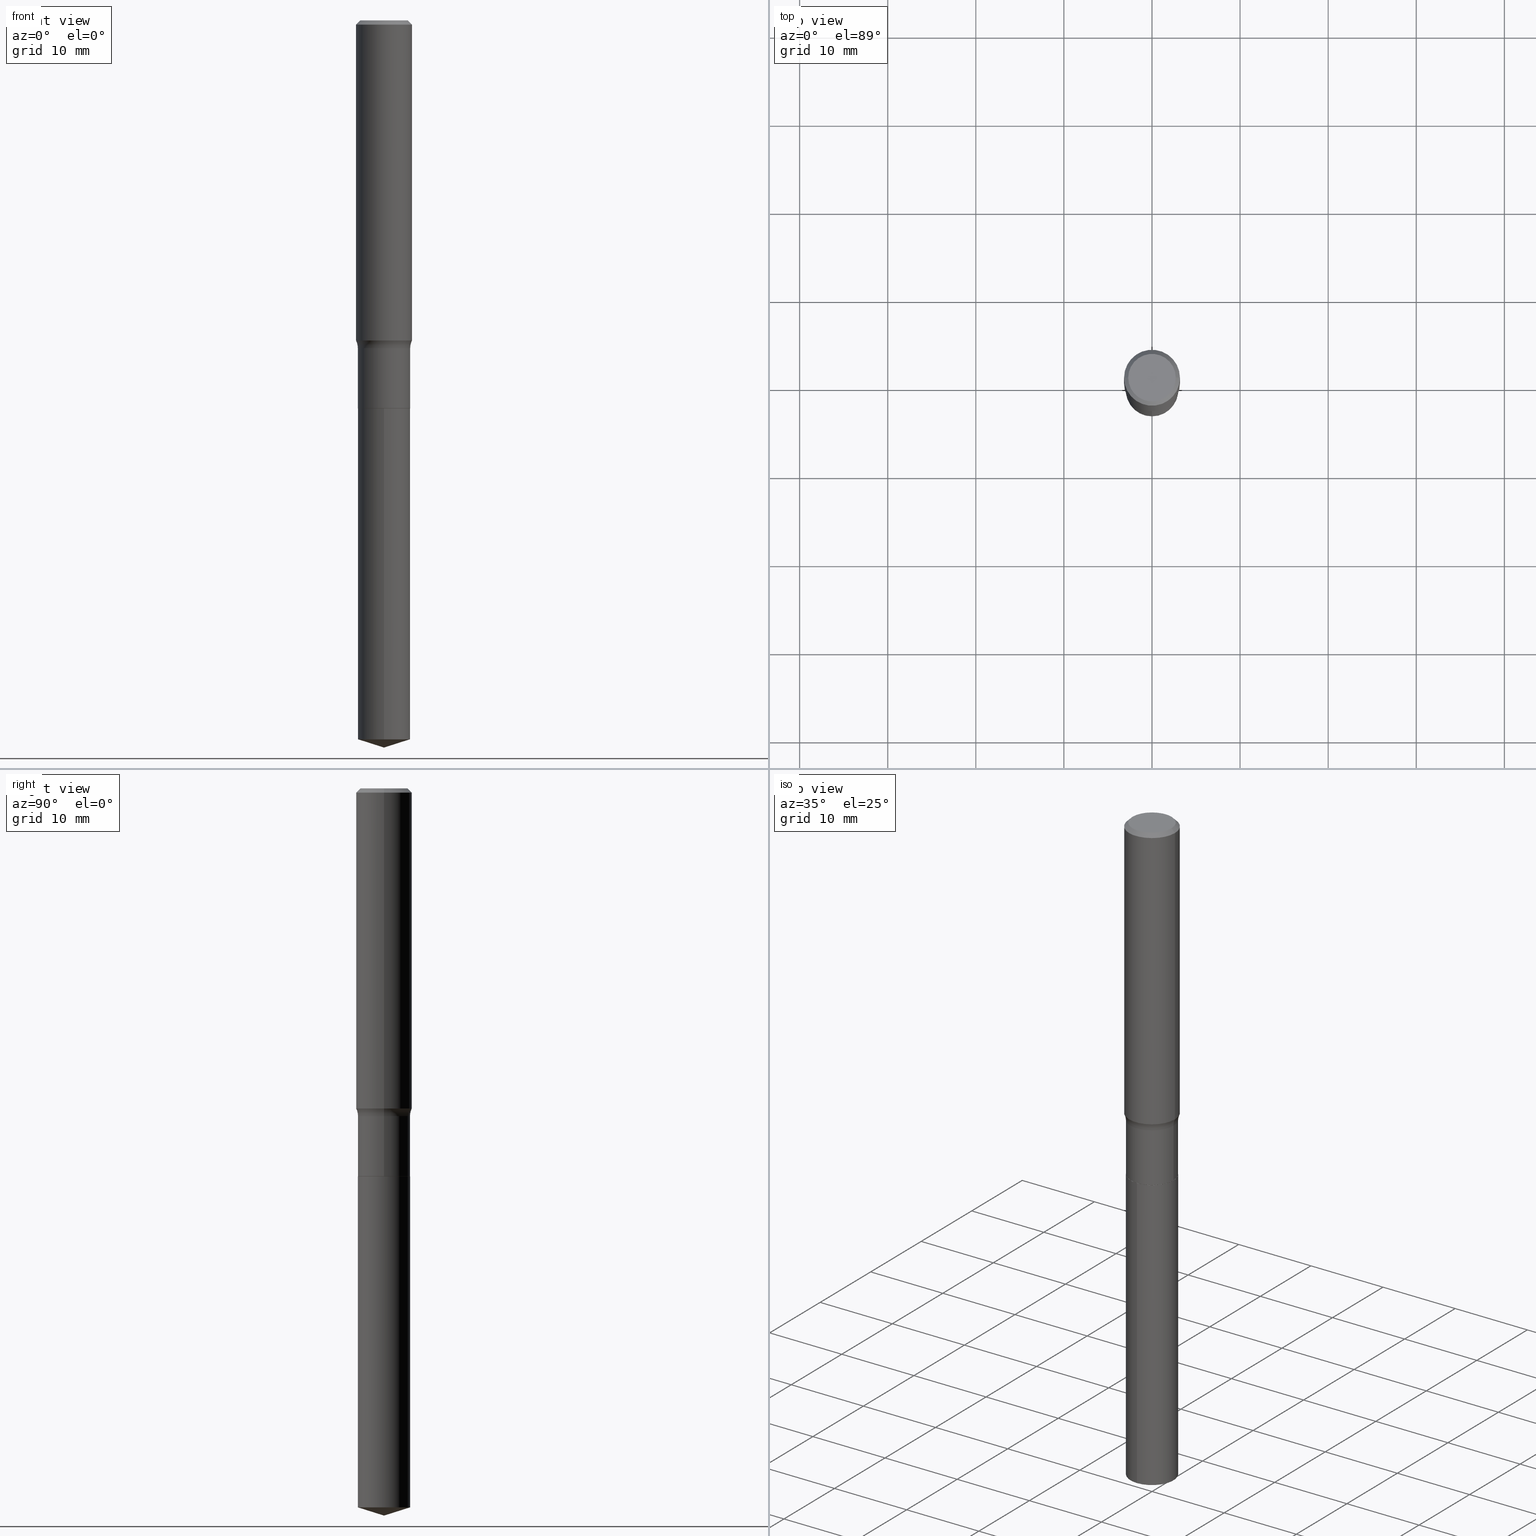
[diagram: canonical four-view strip — front | top / right | iso, engineering-drawing reading convention]
A machine part, canonical four-view strip (front | top / right | iso — engineering-drawing reading convention). The complete STEP part file that produces these views, byte-faithful:
ISO-10303-21;
HEADER;
FILE_DESCRIPTION (( 'STEP AP203' ),
    '1' );
FILE_NAME ('52337.STEP',
    '2024-04-19T13:45:25',
    ( '' ),
    ( '' ),
    'SwSTEP 2.0',
    'SolidWorks 2023',
    '' );
FILE_SCHEMA (( 'CONFIG_CONTROL_DESIGN' ));
ENDSEC;

DATA;
#1 = ORIENTED_EDGE ( 'NONE', *, *, #223, .F. ) ;
#2 = EDGE_CURVE ( 'NONE', #207, #149, #48, .T. ) ;
#3 = LINE ( 'NONE', #281, #126 ) ;
#4 = AXIS2_PLACEMENT_3D ( 'NONE', #97, #217, #404 ) ;
#5 = CIRCLE ( 'NONE', #277, 0.1170000000000000068 ) ;
#6 = EDGE_CURVE ( 'NONE', #191, #117, #389, .T. ) ;
#7 = DIRECTION ( 'NONE',  ( -2.445468806185136597E-29, 3.491481338843145583E-15, 1.000000000000000000 ) ) ;
#8 = DIRECTION ( 'NONE',  ( -6.982962677686265922E-15, -1.000000000000000000, 2.334912815097660779E-15 ) ) ;
#9 = CALENDAR_DATE ( 2024, 19, 4 ) ;
#10 = DIRECTION ( 'NONE',  ( 0.7071067811865452413, -7.319954787623248157E-15, -0.7071067811865497932 ) ) ;
#11 = ORIENTED_EDGE ( 'NONE', *, *, #223, .T. ) ;
#12 = CONICAL_SURFACE ( 'NONE', #4, 124.8659371009122623, 1.265363707695885243 ) ;
#13 = ORGANIZATION ( 'UNSPECIFIED', 'UNSPECIFIED', '' ) ;
#14 = FACE_OUTER_BOUND ( 'NONE', #77, .T. ) ;
#15 = DIRECTION ( 'NONE',  ( 2.445481241211872251E-29, -3.491463531177101851E-15, -1.000000000000000000 ) ) ;
#16 = COORDINATED_UNIVERSAL_TIME_OFFSET ( 5, 0, .BEHIND. ) ;
#17 = MANIFOLD_SOLID_BREP ( 'Body-Move/Copy2[2]', #261 ) ;
#18 = AXIS2_PLACEMENT_3D ( 'NONE', #357, #220, #182 ) ;
#19 = EDGE_LOOP ( 'NONE', ( #173, #452, #32 ) ) ;
#20 = APPROVAL ( #468, 'UNSPECIFIED' ) ;
#21 = ORIENTED_EDGE ( 'NONE', *, *, #335, .T. ) ;
#22 = SECURITY_CLASSIFICATION_LEVEL ( 'unclassified' ) ;
#23 = CARTESIAN_POINT ( 'NONE',  ( 4.239220175521934443E-29, -6.052482900884593475E-15, -1.733500000000000263 ) ) ;
#24 = EDGE_CURVE ( 'NONE', #395, #279, #133, .T. ) ;
#25 = PLANE ( 'NONE',  #454 ) ;
#26 = MANIFOLD_SOLID_BREP ( 'Body-Move/Copy2[1]', #375 ) ;
#27 = EDGE_LOOP ( 'NONE', ( #198, #338, #476, #114 ) ) ;
#28 = EDGE_LOOP ( 'NONE', ( #380, #122 ) ) ;
#29 = AXIS2_PLACEMENT_3D ( 'NONE', #67, #472, #249 ) ;
#30 = DIMENSIONAL_EXPONENTS ( 1.000000000000000000, 0.000000000000000000, 0.000000000000000000, 0.000000000000000000, 0.000000000000000000, 0.000000000000000000, 0.000000000000000000 ) ;
#31 = VERTEX_POINT ( 'NONE', #457 ) ;
#32 = ORIENTED_EDGE ( 'NONE', *, *, #310, .F. ) ;
#33 = VERTEX_POINT ( 'NONE', #125 ) ;
#34 = EDGE_CURVE ( 'NONE', #232, #150, #185, .T. ) ;
#35 = ORIENTED_EDGE ( 'NONE', *, *, #397, .F. ) ;
#36 = DIRECTION ( 'NONE',  ( 1.000000000000000000, -6.982962677686267499E-15, 0.000000000000000000 ) ) ;
#37 = DIRECTION ( 'NONE',  ( -1.000000000000000000, 6.982962677686266711E-15, 0.000000000000000000 ) ) ;
#38 = ORIENTED_EDGE ( 'NONE', *, *, #64, .F. ) ;
#39 = ORIENTED_EDGE ( 'NONE', *, *, #335, .F. ) ;
#40 = DIRECTION ( 'NONE',  ( -2.445468806185136597E-29, 3.491481338843145583E-15, 1.000000000000000000 ) ) ;
#41 = CARTESIAN_POINT ( 'NONE',  ( 3.582367254180606823E-29, -5.114671013271323893E-15, -1.464900000000000091 ) ) ;
#42 = AXIS2_PLACEMENT_3D ( 'NONE', #41, #396, #477 ) ;
#43 = CIRCLE ( 'NONE', #315, 0.1250000000000001943 ) ;
#44 = ORIENTED_EDGE ( 'NONE', *, *, #138, .F. ) ;
#45 = CC_DESIGN_PERSON_AND_ORGANIZATION_ASSIGNMENT ( #65, #291, ( #163 ) ) ;
#46 = VERTEX_POINT ( 'NONE', #425 ) ;
#47 = DIRECTION ( 'NONE',  ( -2.445468806185136597E-29, 3.491481338843145583E-15, 1.000000000000000000 ) ) ;
#48 = CIRCLE ( 'NONE', #460, 0.1062499999999999972 ) ;
#49 = UNCERTAINTY_MEASURE_WITH_UNIT (LENGTH_MEASURE( 1.000000000000000082E-05 ), #194, 'distance_accuracy_value', 'NONE');
#50 = DIRECTION ( 'NONE',  ( -2.445468806185136877E-29, 3.491481338843145188E-15, 1.000000000000000000 ) ) ;
#51 = ADVANCED_FACE ( 'NONE', ( #206 ), #344, .T. ) ;
#52 = FACE_OUTER_BOUND ( 'NONE', #345, .T. ) ;
#53 = CARTESIAN_POINT ( 'NONE',  ( 0.1170000000000000068, -6.869489534173886334E-15, -1.733500000000000263 ) ) ;
#54 = LINE ( 'NONE', #445, #187 ) ;
#55 = CARTESIAN_POINT ( 'NONE',  ( 4.240442909925027244E-29, -6.054228641554014979E-15, -1.734000000000000208 ) ) ;
#56 = CARTESIAN_POINT ( 'NONE',  ( 4.240442909925027244E-29, -6.054228641554014979E-15, -1.734000000000000208 ) ) ;
#57 = VERTEX_POINT ( 'NONE', #160 ) ;
#58 = AXIS2_PLACEMENT_3D ( 'NONE', #271, #379, #36 ) ;
#59 = DIRECTION ( 'NONE',  ( -6.982962677686265922E-15, -1.000000000000000000, 2.334912815097660779E-15 ) ) ;
#60 = AXIS2_PLACEMENT_3D ( 'NONE', #311, #47, #172 ) ;
#61 = AXIS2_PLACEMENT_3D ( 'NONE', #180, #98, #354 ) ;
#62 = CARTESIAN_POINT ( 'NONE',  ( -0.1250000000000001110, 8.881784197001260212E-16, -6.148668862818637832E-30 ) ) ;
#63 = CARTESIAN_POINT ( 'NONE',  ( 8.313350008393960531E-16, 0.1169999999999939422, -1.734000000000000430 ) ) ;
#64 = EDGE_CURVE ( 'NONE', #326, #417, #110, .T. ) ;
#65 = PERSON_AND_ORGANIZATION ( #132, #13 ) ;
#66 = CARTESIAN_POINT ( 'NONE',  ( 8.313350008393596669E-16, 0.1169999999999939422, -1.734000000000000430 ) ) ;
#67 = CARTESIAN_POINT ( 'NONE',  ( 4.585254011597161247E-31, -6.546527510330940369E-17, -0.01875000000000012074 ) ) ;
#68 = ORIENTED_EDGE ( 'NONE', *, *, #263, .F. ) ;
#69 = TOROIDAL_SURFACE ( 'NONE', #18, 0.1949999999999999789, 0.07799999999999995826 ) ;
#70 = EDGE_CURVE ( 'NONE', #149, #326, #421, .T. ) ;
#71 = DIRECTION ( 'NONE',  ( 7.105427357601001859E-15, 1.000000000000000000, -3.491481338843145583E-15 ) ) ;
#72 = DIRECTION ( 'NONE',  ( -2.445481241211872532E-29, 3.491463531177101851E-15, 1.000000000000000000 ) ) ;
#73 = ORIENTED_EDGE ( 'NONE', *, *, #24, .T. ) ;
#74 = PERSON_AND_ORGANIZATION ( #132, #13 ) ;
#75 = AXIS2_PLACEMENT_3D ( 'NONE', #387, #86, #333 ) ;
#76 = CIRCLE ( 'NONE', #61, 0.1170000000000000068 ) ;
#77 = EDGE_LOOP ( 'NONE', ( #73, #374 ) ) ;
#78 = ADVANCED_FACE ( 'NONE', ( #52 ), #210, .F. ) ;
#79 = VERTEX_POINT ( 'NONE', #272 ) ;
#80 = EDGE_LOOP ( 'NONE', ( #306, #487, #35 ) ) ;
#81 = PRODUCT_DEFINITION_SHAPE ( 'NONE', 'NONE',  #130 ) ;
#82 = EDGE_LOOP ( 'NONE', ( #200, #11, #382, #39 ) ) ;
#83 = ORIENTED_EDGE ( 'NONE', *, *, #342, .T. ) ;
#84 = AXIS2_PLACEMENT_3D ( 'NONE', #55, #441, #59 ) ;
#85 = EDGE_CURVE ( 'NONE', #46, #305, #384, .T. ) ;
#86 = DIRECTION ( 'NONE',  ( -2.445481241211872532E-29, 3.491463531177101851E-15, 1.000000000000000000 ) ) ;
#87 = FACE_OUTER_BOUND ( 'NONE', #491, .T. ) ;
#88 =( NAMED_UNIT ( * ) SI_UNIT ( $, .STERADIAN. ) SOLID_ANGLE_UNIT ( ) );
#89 = CC_DESIGN_PERSON_AND_ORGANIZATION_ASSIGNMENT ( #259, #229, ( #262 ) ) ;
#90 = DIRECTION ( 'NONE',  ( 1.000000000000000000, -6.982962677686265922E-15, 4.876176775795935793E-29 ) ) ;
#91 = DIRECTION ( 'NONE',  ( 2.445468806185136597E-29, -3.491481338843145583E-15, -1.000000000000000000 ) ) ;
#92 = ORIENTED_EDGE ( 'NONE', *, *, #157, .F. ) ;
#93 = VECTOR ( 'NONE', #323, 39.37007874015748143 ) ;
#94 = COORDINATED_UNIVERSAL_TIME_OFFSET ( 5, 0, .BEHIND. ) ;
#95 = FACE_OUTER_BOUND ( 'NONE', #273, .T. ) ;
#96 = ORIENTED_EDGE ( 'NONE', *, *, #34, .T. ) ;
#97 = CARTESIAN_POINT ( 'NONE',  ( -8.833099655248723806E-28, 1.261119067860122742E-13, 36.12007874015748143 ) ) ;
#98 = DIRECTION ( 'NONE',  ( -2.445481241211872532E-29, 3.491463531177101851E-15, 1.000000000000000000 ) ) ;
#99 = CIRCLE ( 'NONE', #292, 0.1170000000000000068 ) ;
#100 = DIRECTION ( 'NONE',  ( -1.000000000000000000, 6.982962677686266711E-15, 0.000000000000000000 ) ) ;
#101 = APPLICATION_PROTOCOL_DEFINITION ( 'international standard', 'config_control_design', 1994, #403 ) ;
#102 = FACE_OUTER_BOUND ( 'NONE', #80, .T. ) ;
#103 = CYLINDRICAL_SURFACE ( 'NONE', #192, 0.1170000000000000068 ) ;
#104 = APPROVAL_STATUS ( 'not_yet_approved' ) ;
#105 = DIRECTION ( 'NONE',  ( -6.982962677686265922E-15, -1.000000000000000000, 2.334912815097660779E-15 ) ) ;
#106 = ORIENTED_EDGE ( 'NONE', *, *, #233, .T. ) ;
#107 = CARTESIAN_POINT ( 'NONE',  ( 0.1062499999999999972, -8.259777185439879685E-16, 6.505936120475800733E-18 ) ) ;
#108 = ADVANCED_FACE ( 'NONE', ( #151 ), #240, .T. ) ;
#109 = DIRECTION ( 'NONE',  ( -2.445468806185136877E-29, 3.491481338843145188E-15, 1.000000000000000000 ) ) ;
#110 = CIRCLE ( 'NONE', #473, 0.1250000000000000000 ) ;
#111 = LOCAL_TIME ( 9, 45, 25.00000000000000000, #94 ) ;
#112 = CARTESIAN_POINT ( 'NONE',  ( -0.1165000000000000063, -5.226446354393497922E-15, -1.734000000000000208 ) ) ;
#113 = DATE_AND_TIME ( #448, #300 ) ;
#114 = ORIENTED_EDGE ( 'NONE', *, *, #296, .T. ) ;
#115 = DIRECTION ( 'NONE',  ( 1.000000000000000000, -6.982962677686266711E-15, 0.000000000000000000 ) ) ;
#116 = EDGE_CURVE ( 'NONE', #79, #117, #447, .T. ) ;
#117 = VERTEX_POINT ( 'NONE', #254 ) ;
#118 = ORIENTED_EDGE ( 'NONE', *, *, #479, .T. ) ;
#119 = VECTOR ( 'NONE', #50, 39.37007874015748143 ) ;
#120 = CARTESIAN_POINT ( 'NONE',  ( -1.591006383764330940E-46, 2.271535455632768948E-32, 6.505936120470318766E-18 ) ) ;
#121 = DIRECTION ( 'NONE',  ( -2.445468806185136597E-29, 3.491481338843145583E-15, 1.000000000000000000 ) ) ;
#122 = ORIENTED_EDGE ( 'NONE', *, *, #256, .T. ) ;
#123 = ADVANCED_FACE ( 'NONE', ( #222 ), #25, .F. ) ;
#124 = ORIENTED_EDGE ( 'NONE', *, *, #397, .T. ) ;
#125 = CARTESIAN_POINT ( 'NONE',  ( 8.313350008393958559E-16, 0.1169999999999888074, -3.213110041701158881 ) ) ;
#126 = VECTOR ( 'NONE', #171, 39.37007874015748143 ) ;
#127 = LOCAL_TIME ( 9, 45, 25.00000000000000000, #450 ) ;
#128 = CARTESIAN_POINT ( 'NONE',  ( 0.1165000000000000063, -6.867743793504464830E-15, -1.734000000000000208 ) ) ;
#129 = EDGE_LOOP ( 'NONE', ( #238, #21, #239, #419 ) ) ;
#130 = PRODUCT_DEFINITION ( 'UNKNOWN', '', #262, #352 ) ;
#131 = CARTESIAN_POINT ( 'NONE',  ( -8.170066332892507526E-16, -0.1170000000000060714, -1.733999999999999764 ) ) ;
#132 = PERSON ( 'UNSPECIFIED', 'UNSPECIFIED', 'UNSPECIFIED', ('UNSPECIFIED'), ('UNSPECIFIED'), ('UNSPECIFIED') ) ;
#133 = CIRCLE ( 'NONE', #75, 0.1170000000000000068 ) ;
#134 = AXIS2_PLACEMENT_3D ( 'NONE', #199, #40, #373 ) ;
#135 = DIRECTION ( 'NONE',  ( -6.982962677686265922E-15, -1.000000000000000000, 4.669825630195321559E-15 ) ) ;
#136 = DIRECTION ( 'NONE',  ( 1.000000000000000000, -6.982962677686267499E-15, 0.000000000000000000 ) ) ;
#137 = DATE_AND_TIME ( #9, #153 ) ;
#138 = EDGE_CURVE ( 'NONE', #31, #395, #474, .T. ) ;
#139 = DIRECTION ( 'NONE',  ( -2.445468806185136877E-29, 3.491481338843145188E-15, 1.000000000000000000 ) ) ;
#140 = DIRECTION ( 'NONE',  ( -1.000000000000000000, 7.105427357601001859E-15, 0.000000000000000000 ) ) ;
#141 = TOROIDAL_SURFACE ( 'NONE', #170, 0.1949999999999999789, 0.07799999999999995826 ) ;
#142 = CARTESIAN_POINT ( 'NONE',  ( 0.000000000000000000, 0.000000000000000000, 0.000000000000000000 ) ) ;
#143 = EDGE_CURVE ( 'NONE', #57, #33, #418, .T. ) ;
#144 = MECHANICAL_CONTEXT ( 'NONE', #428, 'mechanical' ) ;
#145 = DATE_AND_TIME ( #415, #284 ) ;
#146 = FACE_OUTER_BOUND ( 'NONE', #422, .T. ) ;
#147 = CARTESIAN_POINT ( 'NONE',  ( -0.1949999999999999789, -3.729112678539128089E-15, -1.464900000000000091 ) ) ;
#148 = CARTESIAN_POINT ( 'NONE',  ( 3.582367254180606823E-29, -5.114671013271323893E-15, -1.464900000000000091 ) ) ;
#149 = VERTEX_POINT ( 'NONE', #107 ) ;
#150 = VERTEX_POINT ( 'NONE', #260 ) ;
#151 = FACE_OUTER_BOUND ( 'NONE', #27, .T. ) ;
#152 = AXIS2_PLACEMENT_3D ( 'NONE', #398, #285, #470 ) ;
#153 = LOCAL_TIME ( 9, 45, 25.00000000000000000, #351 ) ;
#154 = LENGTH_MEASURE_WITH_UNIT ( LENGTH_MEASURE( 0.02539999999999999897 ), #343 );
#155 = ORIENTED_EDGE ( 'NONE', *, *, #179, .T. ) ;
#156 = DIRECTION ( 'NONE',  ( 2.438088387897960049E-29, -3.491481338843145188E-15, -1.000000000000000000 ) ) ;
#157 = EDGE_CURVE ( 'NONE', #377, #191, #426, .T. ) ;
#158 = DIRECTION ( 'NONE',  ( -2.445481241211872251E-29, 3.491463531177101851E-15, 1.000000000000000000 ) ) ;
#159 = CARTESIAN_POINT ( 'NONE',  ( 3.498220381775761986E-29, -4.994531580709170213E-15, -1.430490698931829119 ) ) ;
#160 = CARTESIAN_POINT ( 'NONE',  ( 7.947814033938587129E-29, -1.134725647632558092E-14, -3.250000000000000000 ) ) ;
#161 = CIRCLE ( 'NONE', #152, 0.07799999999999995826 ) ;
#162 = ORIENTED_EDGE ( 'NONE', *, *, #243, .F. ) ;
#163 = PRODUCT ( '52337', '52337', '', ( #144 ) ) ;
#164 = CONICAL_SURFACE ( 'NONE', #193, 124.8659371009122623, 1.265363707695885243 ) ;
#165 = CARTESIAN_POINT ( 'NONE',  ( 4.239220175521934443E-29, -6.052482900884593475E-15, -1.733500000000000263 ) ) ;
#166 = EDGE_LOOP ( 'NONE', ( #96, #309, #38, #459 ) ) ;
#167 = EDGE_LOOP ( 'NONE', ( #266, #83, #244, #242 ) ) ;
#168 = CARTESIAN_POINT ( 'NONE',  ( 4.240442909925027244E-29, -6.054228641554014979E-15, -1.734000000000000208 ) ) ;
#169 = ORIENTED_EDGE ( 'NONE', *, *, #237, .T. ) ;
#170 = AXIS2_PLACEMENT_3D ( 'NONE', #148, #297, #475 ) ;
#171 = DIRECTION ( 'NONE',  ( -6.659769872151617889E-15, -0.9537169507482247122, 0.3007057995042800025 ) ) ;
#172 = DIRECTION ( 'NONE',  ( 1.000000000000000000, -6.982962677686266711E-15, 4.876176775795935232E-29 ) ) ;
#173 = ORIENTED_EDGE ( 'NONE', *, *, #143, .F. ) ;
#174 = ADVANCED_FACE ( 'NONE', ( #87 ), #69, .F. ) ;
#175 = DIRECTION ( 'NONE',  ( -2.445468806185136597E-29, 3.491481338843145583E-15, 1.000000000000000000 ) ) ;
#176 = CARTESIAN_POINT ( 'NONE',  ( 7.857578770593320550E-29, -1.121848741075145102E-14, -3.213110041701158437 ) ) ;
#177 = PERSON_AND_ORGANIZATION_ROLE ( 'creator' ) ;
#178 = AXIS2_PLACEMENT_3D ( 'NONE', #142, #258, #231 ) ;
#179 = EDGE_CURVE ( 'NONE', #232, #46, #161, .T. ) ;
#180 = CARTESIAN_POINT ( 'NONE',  ( 7.857578770593320550E-29, -1.121848741075145102E-14, -3.213110041701158437 ) ) ;
#181 = CARTESIAN_POINT ( 'NONE',  ( 4.240442909925027244E-29, -6.054228641554014979E-15, -1.734000000000000208 ) ) ;
#182 = DIRECTION ( 'NONE',  ( 1.000000000000000000, -6.982962677686266711E-15, 4.883557194083112901E-29 ) ) ;
#183 = DIRECTION ( 'NONE',  ( 6.982962677686265922E-15, 1.000000000000000000, -3.491463531177101851E-15 ) ) ;
#184 = FACE_OUTER_BOUND ( 'NONE', #167, .T. ) ;
#185 = CIRCLE ( 'NONE', #58, 0.1250000000000001943 ) ;
#186 = CARTESIAN_POINT ( 'NONE',  ( 4.585254011597161247E-31, -6.546527510330940369E-17, -0.01875000000000012074 ) ) ;
#187 = VECTOR ( 'NONE', #109, 39.37007874015748143 ) ;
#188 = CARTESIAN_POINT ( 'NONE',  ( 7.947814412091061404E-29, -1.134725647632558250E-14, -3.250000000000000000 ) ) ;
#189 = ORIENTED_EDGE ( 'NONE', *, *, #310, .T. ) ;
#190 = APPLICATION_PROTOCOL_DEFINITION ( 'international standard', 'config_control_design', 1994, #428 ) ;
#191 = VERTEX_POINT ( 'NONE', #53 ) ;
#192 = AXIS2_PLACEMENT_3D ( 'NONE', #286, #463, #8 ) ;
#193 = AXIS2_PLACEMENT_3D ( 'NONE', #227, #391, #294 ) ;
#194 =( CONVERSION_BASED_UNIT ( 'INCH', #154 ) LENGTH_UNIT ( ) NAMED_UNIT ( #30 ) );
#195 = CALENDAR_DATE ( 2024, 19, 4 ) ;
#196 = ORIENTED_EDGE ( 'NONE', *, *, #414, .F. ) ;
#197 = ORIENTED_EDGE ( 'NONE', *, *, #85, .T. ) ;
#198 = ORIENTED_EDGE ( 'NONE', *, *, #70, .F. ) ;
#199 = CARTESIAN_POINT ( 'NONE',  ( 4.240442909925027244E-29, -6.054228641554014979E-15, -1.734000000000000208 ) ) ;
#200 = ORIENTED_EDGE ( 'NONE', *, *, #116, .F. ) ;
#201 = ORIENTED_EDGE ( 'NONE', *, *, #434, .F. ) ;
#202 = EDGE_CURVE ( 'NONE', #207, #417, #248, .T. ) ;
#203 = ORIENTED_EDGE ( 'NONE', *, *, #381, .T. ) ;
#204 = AXIS2_PLACEMENT_3D ( 'NONE', #303, #336, #451 ) ;
#205 = CC_DESIGN_APPROVAL ( #386, ( #235 ) ) ;
#206 = FACE_OUTER_BOUND ( 'NONE', #166, .T. ) ;
#207 = VERTEX_POINT ( 'NONE', #316 ) ;
#208 = DIRECTION ( 'NONE',  ( 0.7071067811866199593, -2.468850131083015945E-15, 0.7071067811864750752 ) ) ;
#209 = CARTESIAN_POINT ( 'NONE',  ( 4.240442909925027244E-29, -6.054228641554014979E-15, -1.734000000000000208 ) ) ;
#210 = PLANE ( 'NONE',  #480 ) ;
#211 = CARTESIAN_POINT ( 'NONE',  ( 0.1165000000000000063, -6.867743793504464830E-15, -1.734000000000000208 ) ) ;
#212 = DATE_AND_TIME ( #393, #111 ) ;
#213 = EDGE_CURVE ( 'NONE', #57, #31, #3, .T. ) ;
#214 = AXIS2_PLACEMENT_3D ( 'NONE', #181, #15, #183 ) ;
#215 = CIRCLE ( 'NONE', #84, 0.1170000000000000068 ) ;
#216 = AXIS2_PLACEMENT_3D ( 'NONE', #467, #175, #136 ) ;
#217 = DIRECTION ( 'NONE',  ( -2.445481241211872532E-29, 3.491463531177101851E-15, 1.000000000000000000 ) ) ;
#218 = DIRECTION ( 'NONE',  ( 1.000000000000000000, 0.000000000000000000, 0.000000000000000000 ) ) ;
#219 = FACE_OUTER_BOUND ( 'NONE', #129, .T. ) ;
#220 = DIRECTION ( 'NONE',  ( -2.445468806185136597E-29, 3.491481338843145583E-15, 1.000000000000000000 ) ) ;
#221 = PLANE ( 'NONE',  #214 ) ;
#222 = FACE_OUTER_BOUND ( 'NONE', #28, .T. ) ;
#223 = EDGE_CURVE ( 'NONE', #79, #377, #488, .T. ) ;
#224 = CARTESIAN_POINT ( 'NONE',  ( -0.1169999999999999790, -4.752241956238641517E-15, -1.464900000000000091 ) ) ;
#225 = CC_DESIGN_PERSON_AND_ORGANIZATION_ASSIGNMENT ( #250, #438, ( #235 ) ) ;
#226 = DATE_AND_TIME ( #195, #127 ) ;
#227 = CARTESIAN_POINT ( 'NONE',  ( -8.833099655248723806E-28, 1.261119067860122742E-13, 36.12007874015748143 ) ) ;
#228 = ORIENTED_EDGE ( 'NONE', *, *, #70, .T. ) ;
#229 = PERSON_AND_ORGANIZATION_ROLE ( 'creator' ) ;
#230 = CIRCLE ( 'NONE', #216, 0.1169999999999999790 ) ;
#231 = DIRECTION ( 'NONE',  ( 1.000000000000000000, -6.982962677686266711E-15, 4.876176775795935232E-29 ) ) ;
#232 = VERTEX_POINT ( 'NONE', #356 ) ;
#233 = EDGE_CURVE ( 'NONE', #232, #326, #409, .T. ) ;
#234 = VECTOR ( 'NONE', #321, 39.37007874015748143 ) ;
#235 = SECURITY_CLASSIFICATION ( '', '', #22 ) ;
#236 = ORIENTED_EDGE ( 'NONE', *, *, #414, .T. ) ;
#237 = EDGE_CURVE ( 'NONE', #150, #305, #464, .T. ) ;
#238 = ORIENTED_EDGE ( 'NONE', *, *, #342, .F. ) ;
#239 = ORIENTED_EDGE ( 'NONE', *, *, #269, .T. ) ;
#240 = CONICAL_SURFACE ( 'NONE', #353, 0.1250000000000000000, 0.7853981633974450594 ) ;
#241 = CONICAL_SURFACE ( 'NONE', #440, 0.1250000000000000000, 0.7853981633974450594 ) ;
#242 = ORIENTED_EDGE ( 'NONE', *, *, #269, .F. ) ;
#243 = EDGE_CURVE ( 'NONE', #33, #279, #405, .T. ) ;
#244 = ORIENTED_EDGE ( 'NONE', *, *, #85, .F. ) ;
#245 = VECTOR ( 'NONE', #158, 39.37007874015748143 ) ;
#246 = ADVANCED_FACE ( 'NONE', ( #406 ), #12, .T. ) ;
#247 = APPROVAL_ROLE ( '' ) ;
#248 = LINE ( 'NONE', #282, #307 ) ;
#249 = DIRECTION ( 'NONE',  ( 1.000000000000000000, -6.982962677686266711E-15, 0.000000000000000000 ) ) ;
#250 = PERSON_AND_ORGANIZATION ( #132, #13 ) ;
#251 = FACE_OUTER_BOUND ( 'NONE', #82, .T. ) ;
#252 = DIRECTION ( 'NONE',  ( -2.445468806185136597E-29, 3.491481338843145583E-15, 1.000000000000000000 ) ) ;
#253 = LINE ( 'NONE', #62, #119 ) ;
#254 = CARTESIAN_POINT ( 'NONE',  ( -0.1170000000000000207, -4.752241956238641517E-15, -1.733500000000000263 ) ) ;
#255 = PERSON_AND_ORGANIZATION ( #132, #13 ) ;
#256 = EDGE_CURVE ( 'NONE', #149, #207, #446, .T. ) ;
#257 = SHAPE_DEFINITION_REPRESENTATION ( #81, #348 ) ;
#258 = DIRECTION ( 'NONE',  ( -2.445468806185136597E-29, 3.491481338843145583E-15, 1.000000000000000000 ) ) ;
#259 = PERSON_AND_ORGANIZATION ( #132, #13 ) ;
#260 = CARTESIAN_POINT ( 'NONE',  ( -0.1250000000000001943, -4.106353161009043403E-15, -1.430490698931829119 ) ) ;
#261 = CLOSED_SHELL ( 'NONE', ( #465, #462, #51, #174, #359, #456, #327, #378, #108, #123, #78, #429 ) ) ;
#262 = PRODUCT_DEFINITION_FORMATION_WITH_SPECIFIED_SOURCE ( 'ANY', '', #163, .NOT_KNOWN. ) ;
#263 = EDGE_CURVE ( 'NONE', #279, #395, #215, .T. ) ;
#264 = DIRECTION ( 'NONE',  ( -2.445468806185136597E-29, 3.491481338843145583E-15, 1.000000000000000000 ) ) ;
#265 = COORDINATED_UNIVERSAL_TIME_OFFSET ( 5, 0, .BEHIND. ) ;
#266 = ORIENTED_EDGE ( 'NONE', *, *, #6, .T. ) ;
#267 = DIRECTION ( 'NONE',  ( -2.445468806185136597E-29, 3.491481338843145583E-15, 1.000000000000000000 ) ) ;
#268 = DIRECTION ( 'NONE',  ( 1.000000000000000000, -6.982962677686265922E-15, 0.000000000000000000 ) ) ;
#269 = EDGE_CURVE ( 'NONE', #191, #46, #358, .T. ) ;
#270 = ORIENTED_EDGE ( 'NONE', *, *, #296, .F. ) ;
#271 = CARTESIAN_POINT ( 'NONE',  ( 3.498220381775761986E-29, -4.994531580709170213E-15, -1.430490698931829119 ) ) ;
#272 = CARTESIAN_POINT ( 'NONE',  ( -0.1165000000000000063, -5.223797127219386721E-15, -1.734000000000000208 ) ) ;
#273 = EDGE_LOOP ( 'NONE', ( #124, #411, #278, #44 ) ) ;
#274 = CARTESIAN_POINT ( 'NONE',  ( 0.1250000000000000000, -9.230275248247507874E-16, -0.01875000000000012074 ) ) ;
#275 = ORIENTED_EDGE ( 'NONE', *, *, #138, .T. ) ;
#276 = CONICAL_SURFACE ( 'NONE', #134, 0.1165000000000000063, 0.7853981633975507526 ) ;
#277 = AXIS2_PLACEMENT_3D ( 'NONE', #23, #264, #410 ) ;
#278 = ORIENTED_EDGE ( 'NONE', *, *, #24, .F. ) ;
#279 = VERTEX_POINT ( 'NONE', #63 ) ;
#280 = FACE_OUTER_BOUND ( 'NONE', #424, .T. ) ;
#281 = CARTESIAN_POINT ( 'NONE',  ( 7.947770909265865952E-29, -1.134731823331142221E-14, -3.250000000000000000 ) ) ;
#282 = CARTESIAN_POINT ( 'NONE',  ( -0.1250000000000000000, 8.074050596074739968E-16, -0.01875000000000012074 ) ) ;
#283 = ADVANCED_FACE ( 'NONE', ( #14 ), #221, .F. ) ;
#284 = LOCAL_TIME ( 9, 45, 25.00000000000000000, #16 ) ;
#285 = DIRECTION ( 'NONE',  ( -6.982962677686266711E-15, -1.000000000000000000, 3.491481338843145583E-15 ) ) ;
#286 = CARTESIAN_POINT ( 'NONE',  ( 4.240442909925027244E-29, -6.054228641554014979E-15, -1.734000000000000208 ) ) ;
#287 = DIRECTION ( 'NONE',  ( 1.000000000000000000, -6.982962677686270655E-15, 0.000000000000000000 ) ) ;
#288 = DIRECTION ( 'NONE',  ( 1.000000000000000000, -6.982962677686270655E-15, 0.000000000000000000 ) ) ;
#289 = DIRECTION ( 'NONE',  ( -2.438088387897960049E-29, 3.491481338843145188E-15, 1.000000000000000000 ) ) ;
#290 = DIRECTION ( 'NONE',  ( -0.7071067811865452413, 2.468850131082233000E-15, -0.7071067811865497932 ) ) ;
#291 = PERSON_AND_ORGANIZATION_ROLE ( 'design_owner' ) ;
#292 = AXIS2_PLACEMENT_3D ( 'NONE', #176, #313, #135 ) ;
#293 = ADVANCED_FACE ( 'NONE', ( #350 ), #103, .T. ) ;
#294 = DIRECTION ( 'NONE',  ( -6.982962677686265922E-15, -1.000000000000000000, 3.500519750498782924E-15 ) ) ;
#295 = APPROVAL_DATE_TIME ( #212, #20 ) ;
#296 = EDGE_CURVE ( 'NONE', #417, #326, #400, .T. ) ;
#297 = DIRECTION ( 'NONE',  ( -2.445468806185136597E-29, 3.491481338843145583E-15, 1.000000000000000000 ) ) ;
#298 = AXIS2_PLACEMENT_3D ( 'NONE', #318, #252, #399 ) ;
#299 = DIRECTION ( 'NONE',  ( 2.445468806185136597E-29, -3.491481338843145583E-15, -1.000000000000000000 ) ) ;
#300 = LOCAL_TIME ( 9, 45, 25.00000000000000000, #265 ) ;
#301 = APPROVAL_ROLE ( '' ) ;
#302 = ORIENTED_EDGE ( 'NONE', *, *, #479, .F. ) ;
#303 = CARTESIAN_POINT ( 'NONE',  ( 0.000000000000000000, 0.000000000000000000, 0.000000000000000000 ) ) ;
#304 = DIRECTION ( 'NONE',  ( -1.000000000000000000, 6.982962677686265922E-15, -4.876176775795935793E-29 ) ) ;
#305 = VERTEX_POINT ( 'NONE', #224 ) ;
#306 = ORIENTED_EDGE ( 'NONE', *, *, #213, .F. ) ;
#307 = VECTOR ( 'NONE', #290, 39.37007874015748143 ) ;
#308 = DIRECTION ( 'NONE',  ( -2.445468806185136597E-29, 3.491481338843145583E-15, 1.000000000000000000 ) ) ;
#309 = ORIENTED_EDGE ( 'NONE', *, *, #434, .T. ) ;
#310 = EDGE_CURVE ( 'NONE', #33, #31, #99, .T. ) ;
#311 = CARTESIAN_POINT ( 'NONE',  ( 0.000000000000000000, 0.000000000000000000, 0.000000000000000000 ) ) ;
#312 = DIRECTION ( 'NONE',  ( -2.445468806185136597E-29, 3.491481338843145583E-15, 1.000000000000000000 ) ) ;
#313 = DIRECTION ( 'NONE',  ( -2.445481241211872532E-29, 3.491463531177101851E-15, 1.000000000000000000 ) ) ;
#314 = AXIS2_PLACEMENT_3D ( 'NONE', #147, #71, #140 ) ;
#315 = AXIS2_PLACEMENT_3D ( 'NONE', #159, #337, #341 ) ;
#316 = CARTESIAN_POINT ( 'NONE',  ( -0.1062499999999999972, 7.746724220558198188E-16, 6.505936120465015526E-18 ) ) ;
#317 = DATE_TIME_ROLE ( 'creation_date' ) ;
#318 = CARTESIAN_POINT ( 'NONE',  ( -1.591006383764330940E-46, 2.271535455632768948E-32, 6.505936120470318766E-18 ) ) ;
#319 = DIRECTION ( 'NONE',  ( 0.000000000000000000, 0.000000000000000000, 1.000000000000000000 ) ) ;
#320 = ADVANCED_FACE ( 'NONE', ( #95 ), #394, .T. ) ;
#321 = DIRECTION ( 'NONE',  ( -0.7071067811866199593, 7.493145998870616062E-15, 0.7071067811864750752 ) ) ;
#322 = VECTOR ( 'NONE', #208, 39.37007874015748143 ) ;
#323 = DIRECTION ( 'NONE',  ( -2.445481241211872251E-29, 3.491463531177101851E-15, 1.000000000000000000 ) ) ;
#324 = CYLINDRICAL_SURFACE ( 'NONE', #178, 0.1169999999999999929 ) ;
#325 = DIRECTION ( 'NONE',  ( 6.776566513254243149E-15, 0.9537169507482267106, 0.3007057995042733411 ) ) ;
#326 = VERTEX_POINT ( 'NONE', #443 ) ;
#327 = ADVANCED_FACE ( 'NONE', ( #146 ), #141, .F. ) ;
#328 = APPROVAL_STATUS ( 'not_yet_approved' ) ;
#329 = CC_DESIGN_DATE_AND_TIME_ASSIGNMENT ( #137, #317, ( #130 ) ) ;
#330 = VECTOR ( 'NONE', #325, 39.37007874015748143 ) ;
#331 = APPROVAL_PERSON_ORGANIZATION ( #362, #386, #485 ) ;
#332 = DATE_TIME_ROLE ( 'classification_date' ) ;
#333 = DIRECTION ( 'NONE',  ( -6.982962677686265922E-15, -1.000000000000000000, 2.334912815097660779E-15 ) ) ;
#334 = FACE_OUTER_BOUND ( 'NONE', #490, .T. ) ;
#335 = EDGE_CURVE ( 'NONE', #117, #191, #5, .T. ) ;
#336 = DIRECTION ( 'NONE',  ( -2.445468806185136597E-29, 3.491481338843145583E-15, 1.000000000000000000 ) ) ;
#337 = DIRECTION ( 'NONE',  ( -2.445468806185136597E-29, 3.491481338843145583E-15, 1.000000000000000000 ) ) ;
#338 = ORIENTED_EDGE ( 'NONE', *, *, #2, .F. ) ;
#339 = ORIENTED_EDGE ( 'NONE', *, *, #256, .F. ) ;
#340 = VECTOR ( 'NONE', #10, 39.37007874015748143 ) ;
#341 = DIRECTION ( 'NONE',  ( 1.000000000000000000, -6.982962677686267499E-15, 0.000000000000000000 ) ) ;
#342 = EDGE_CURVE ( 'NONE', #117, #305, #54, .T. ) ;
#343 =( LENGTH_UNIT ( ) NAMED_UNIT ( * ) SI_UNIT ( $, .METRE. ) );
#344 = CYLINDRICAL_SURFACE ( 'NONE', #204, 0.1250000000000001110 ) ;
#345 = EDGE_LOOP ( 'NONE', ( #196, #1 ) ) ;
#346 = CIRCLE ( 'NONE', #390, 0.1165000000000000063 ) ;
#347 = CC_DESIGN_PERSON_AND_ORGANIZATION_ASSIGNMENT ( #74, #177, ( #130 ) ) ;
#348 = ADVANCED_BREP_SHAPE_REPRESENTATION ( '52337', ( #26, #17, #367 ), #355 ) ;
#349 = DIRECTION ( 'NONE',  ( 1.000000000000000000, -6.982962677686266711E-15, 4.876176775795935232E-29 ) ) ;
#350 = FACE_OUTER_BOUND ( 'NONE', #458, .T. ) ;
#351 = COORDINATED_UNIVERSAL_TIME_OFFSET ( 5, 0, .BEHIND. ) ;
#352 = DESIGN_CONTEXT ( 'detailed design', #403, 'design' ) ;
#353 = AXIS2_PLACEMENT_3D ( 'NONE', #186, #299, #100 ) ;
#354 = DIRECTION ( 'NONE',  ( -6.982962677686265922E-15, -1.000000000000000000, 4.669825630195321559E-15 ) ) ;
#355 =( GEOMETRIC_REPRESENTATION_CONTEXT ( 3 ) GLOBAL_UNCERTAINTY_ASSIGNED_CONTEXT ( ( #49 ) ) GLOBAL_UNIT_ASSIGNED_CONTEXT ( ( #194, #484, #88 ) ) REPRESENTATION_CONTEXT ( 'NONE', 'WORKASPACE' ) );
#356 = CARTESIAN_POINT ( 'NONE',  ( 0.1250000000000001943, -5.867401915419955130E-15, -1.430490698931829119 ) ) ;
#357 = CARTESIAN_POINT ( 'NONE',  ( 3.582367254180606823E-29, -5.114671013271323893E-15, -1.464900000000000091 ) ) ;
#358 = LINE ( 'NONE', #471, #481 ) ;
#359 = ADVANCED_FACE ( 'NONE', ( #184 ), #324, .T. ) ;
#360 = CYLINDRICAL_SURFACE ( 'NONE', #60, 0.1169999999999999929 ) ;
#361 = CC_DESIGN_PERSON_AND_ORGANIZATION_ASSIGNMENT ( #436, #368, ( #262 ) ) ;
#362 = PERSON_AND_ORGANIZATION ( #132, #13 ) ;
#363 = EDGE_LOOP ( 'NONE', ( #201, #118, #106, #270 ) ) ;
#364 = CARTESIAN_POINT ( 'NONE',  ( 0.1250000000000001110, -8.728703347107841277E-16, 6.095220969744924646E-30 ) ) ;
#365 = ADVANCED_FACE ( 'NONE', ( #102 ), #164, .T. ) ;
#366 = CYLINDRICAL_SURFACE ( 'NONE', #466, 0.1250000000000001110 ) ;
#367 = AXIS2_PLACEMENT_3D ( 'NONE', #478, #319, #218 ) ;
#368 = PERSON_AND_ORGANIZATION_ROLE ( 'design_supplier' ) ;
#369 = DIRECTION ( 'NONE',  ( -2.445468806185136877E-29, 3.491481338843145188E-15, 1.000000000000000000 ) ) ;
#370 = CARTESIAN_POINT ( 'NONE',  ( 0.000000000000000000, 0.000000000000000000, 0.000000000000000000 ) ) ;
#371 = ORIENTED_EDGE ( 'NONE', *, *, #237, .F. ) ;
#372 = CARTESIAN_POINT ( 'NONE',  ( -7.955031918821654702E-47, 1.135767727816384474E-32, 3.252968060235159383E-18 ) ) ;
#373 = DIRECTION ( 'NONE',  ( 1.000000000000000000, -6.982962677686270655E-15, 0.000000000000000000 ) ) ;
#374 = ORIENTED_EDGE ( 'NONE', *, *, #263, .T. ) ;
#375 = CLOSED_SHELL ( 'NONE', ( #320, #365, #246, #293, #283 ) ) ;
#376 = CC_DESIGN_APPROVAL ( #442, ( #130 ) ) ;
#377 = VERTEX_POINT ( 'NONE', #211 ) ;
#378 = ADVANCED_FACE ( 'NONE', ( #407 ), #366, .T. ) ;
#379 = DIRECTION ( 'NONE',  ( -2.445468806185136597E-29, 3.491481338843145583E-15, 1.000000000000000000 ) ) ;
#380 = ORIENTED_EDGE ( 'NONE', *, *, #2, .T. ) ;
#381 = EDGE_CURVE ( 'NONE', #305, #46, #230, .T. ) ;
#382 = ORIENTED_EDGE ( 'NONE', *, *, #157, .T. ) ;
#383 = DIRECTION ( 'NONE',  ( 1.000000000000000000, -6.982962677686266711E-15, 4.875930095424100059E-29 ) ) ;
#384 = CIRCLE ( 'NONE', #42, 0.1169999999999999790 ) ;
#385 = CC_DESIGN_APPROVAL ( #20, ( #262 ) ) ;
#386 = APPROVAL ( #104, 'UNSPECIFIED' ) ;
#387 = CARTESIAN_POINT ( 'NONE',  ( 4.240442909925027244E-29, -6.054228641554014979E-15, -1.734000000000000208 ) ) ;
#388 = DIRECTION ( 'NONE',  ( -2.445468806185136597E-29, 3.491481338843145583E-15, 1.000000000000000000 ) ) ;
#389 = CIRCLE ( 'NONE', #439, 0.1170000000000000068 ) ;
#390 = AXIS2_PLACEMENT_3D ( 'NONE', #392, #312, #287 ) ;
#391 = DIRECTION ( 'NONE',  ( -2.445481241211872532E-29, 3.491463531177101851E-15, 1.000000000000000000 ) ) ;
#392 = CARTESIAN_POINT ( 'NONE',  ( 4.240442909925027244E-29, -6.054228641554014979E-15, -1.734000000000000208 ) ) ;
#393 = CALENDAR_DATE ( 2024, 19, 4 ) ;
#394 = CYLINDRICAL_SURFACE ( 'NONE', #416, 0.1170000000000000068 ) ;
#395 = VERTEX_POINT ( 'NONE', #131 ) ;
#396 = DIRECTION ( 'NONE',  ( -2.445468806185136597E-29, 3.491481338843145583E-15, 1.000000000000000000 ) ) ;
#397 = EDGE_CURVE ( 'NONE', #31, #33, #76, .T. ) ;
#398 = CARTESIAN_POINT ( 'NONE',  ( 0.1949999999999999789, -6.476348735420145586E-15, -1.464900000000000091 ) ) ;
#399 = DIRECTION ( 'NONE',  ( 1.000000000000000000, -6.982962677686266711E-15, 4.875930095424100059E-29 ) ) ;
#400 = CIRCLE ( 'NONE', #29, 0.1250000000000000000 ) ;
#401 = CC_DESIGN_SECURITY_CLASSIFICATION ( #235, ( #262 ) ) ;
#402 = CARTESIAN_POINT ( 'NONE',  ( 4.240442909925027244E-29, -6.054228641554014979E-15, -1.734000000000000208 ) ) ;
#403 = APPLICATION_CONTEXT ( 'configuration controlled 3d designs of mechanical parts and assemblies' ) ;
#404 = DIRECTION ( 'NONE',  ( -6.982962677686265922E-15, -1.000000000000000000, 3.500519750498782924E-15 ) ) ;
#405 = LINE ( 'NONE', #66, #93 ) ;
#406 = FACE_OUTER_BOUND ( 'NONE', #19, .T. ) ;
#407 = FACE_OUTER_BOUND ( 'NONE', #363, .T. ) ;
#408 = AXIS2_PLACEMENT_3D ( 'NONE', #209, #388, #288 ) ;
#409 = LINE ( 'NONE', #364, #431 ) ;
#410 = DIRECTION ( 'NONE',  ( 1.000000000000000000, -6.982962677686265922E-15, 0.000000000000000000 ) ) ;
#411 = ORIENTED_EDGE ( 'NONE', *, *, #243, .T. ) ;
#412 = APPROVAL_DATE_TIME ( #113, #442 ) ;
#413 = APPROVAL_DATE_TIME ( #226, #386 ) ;
#414 = EDGE_CURVE ( 'NONE', #377, #79, #346, .T. ) ;
#415 = CALENDAR_DATE ( 2024, 19, 4 ) ;
#416 = AXIS2_PLACEMENT_3D ( 'NONE', #56, #72, #105 ) ;
#417 = VERTEX_POINT ( 'NONE', #433 ) ;
#418 = LINE ( 'NONE', #188, #330 ) ;
#419 = ORIENTED_EDGE ( 'NONE', *, *, #381, .F. ) ;
#420 = ORIENTED_EDGE ( 'NONE', *, *, #116, .T. ) ;
#421 = LINE ( 'NONE', #274, #340 ) ;
#422 = EDGE_LOOP ( 'NONE', ( #371, #489, #155, #197 ) ) ;
#423 = CC_DESIGN_DATE_AND_TIME_ASSIGNMENT ( #145, #332, ( #235 ) ) ;
#424 = EDGE_LOOP ( 'NONE', ( #339, #228, #449, #492 ) ) ;
#425 = CARTESIAN_POINT ( 'NONE',  ( 0.1169999999999999790, -5.931677646560616751E-15, -1.464900000000000091 ) ) ;
#426 = LINE ( 'NONE', #128, #322 ) ;
#427 = APPROVAL_PERSON_ORGANIZATION ( #435, #20, #247 ) ;
#428 = APPLICATION_CONTEXT ( 'configuration controlled 3d designs of mechanical parts and assemblies' ) ;
#429 = ADVANCED_FACE ( 'NONE', ( #251 ), #461, .T. ) ;
#430 = CARTESIAN_POINT ( 'NONE',  ( 4.585254011597161247E-31, -6.546527510330940369E-17, -0.01875000000000012074 ) ) ;
#431 = VECTOR ( 'NONE', #369, 39.37007874015748143 ) ;
#432 = APPROVAL_PERSON_ORGANIZATION ( #255, #442, #301 ) ;
#433 = CARTESIAN_POINT ( 'NONE',  ( -0.1250000000000000000, -1.641820008206113066E-15, -0.01875000000000012074 ) ) ;
#434 = EDGE_CURVE ( 'NONE', #150, #417, #253, .T. ) ;
#435 = PERSON_AND_ORGANIZATION ( #132, #13 ) ;
#436 = PERSON_AND_ORGANIZATION ( #132, #13 ) ;
#437 = DIRECTION ( 'NONE',  ( 1.000000000000000000, -6.982962677686270655E-15, 0.000000000000000000 ) ) ;
#438 = PERSON_AND_ORGANIZATION_ROLE ( 'classification_officer' ) ;
#439 = AXIS2_PLACEMENT_3D ( 'NONE', #165, #308, #268 ) ;
#440 = AXIS2_PLACEMENT_3D ( 'NONE', #430, #91, #37 ) ;
#441 = DIRECTION ( 'NONE',  ( -2.445481241211872532E-29, 3.491463531177101851E-15, 1.000000000000000000 ) ) ;
#442 = APPROVAL ( #328, 'UNSPECIFIED' ) ;
#443 = CARTESIAN_POINT ( 'NONE',  ( 0.1250000000000000000, -9.383356098140926809E-16, -0.01875000000000012074 ) ) ;
#444 = PRODUCT_RELATED_PRODUCT_CATEGORY ( 'detail', '', ( #163 ) ) ;
#445 = CARTESIAN_POINT ( 'NONE',  ( -0.1169999999999999929, 8.313350008393171670E-16, -5.755154055598239585E-30 ) ) ;
#446 = CIRCLE ( 'NONE', #298, 0.1062499999999999972 ) ;
#447 = LINE ( 'NONE', #112, #234 ) ;
#448 = CALENDAR_DATE ( 2024, 19, 4 ) ;
#449 = ORIENTED_EDGE ( 'NONE', *, *, #64, .T. ) ;
#450 = COORDINATED_UNIVERSAL_TIME_OFFSET ( 5, 0, .BEHIND. ) ;
#451 = DIRECTION ( 'NONE',  ( 1.000000000000000000, -6.982962677686266711E-15, 4.876176775795935232E-29 ) ) ;
#452 = ORIENTED_EDGE ( 'NONE', *, *, #213, .T. ) ;
#453 = ORIENTED_EDGE ( 'NONE', *, *, #179, .F. ) ;
#454 = AXIS2_PLACEMENT_3D ( 'NONE', #372, #156, #304 ) ;
#455 = CARTESIAN_POINT ( 'NONE',  ( 4.585254011597161247E-31, -6.546527510330940369E-17, -0.01875000000000012074 ) ) ;
#456 = ADVANCED_FACE ( 'NONE', ( #219 ), #360, .T. ) ;
#457 = CARTESIAN_POINT ( 'NONE',  ( -8.170066332892147608E-16, -0.1170000000000112617, -3.213110041701157993 ) ) ;
#458 = EDGE_LOOP ( 'NONE', ( #162, #189, #275, #68 ) ) ;
#459 = ORIENTED_EDGE ( 'NONE', *, *, #233, .F. ) ;
#460 = AXIS2_PLACEMENT_3D ( 'NONE', #120, #121, #383 ) ;
#461 = CONICAL_SURFACE ( 'NONE', #482, 0.1165000000000000063, 0.7853981633975507526 ) ;
#462 = ADVANCED_FACE ( 'NONE', ( #280 ), #241, .T. ) ;
#463 = DIRECTION ( 'NONE',  ( -2.445481241211872532E-29, 3.491463531177101851E-15, 1.000000000000000000 ) ) ;
#464 = CIRCLE ( 'NONE', #314, 0.07799999999999995826 ) ;
#465 = ADVANCED_FACE ( 'NONE', ( #334 ), #276, .T. ) ;
#466 = AXIS2_PLACEMENT_3D ( 'NONE', #370, #7, #349 ) ;
#467 = CARTESIAN_POINT ( 'NONE',  ( 3.582367254180606823E-29, -5.114671013271323893E-15, -1.464900000000000091 ) ) ;
#468 = APPROVAL_STATUS ( 'not_yet_approved' ) ;
#469 = DIRECTION ( 'NONE',  ( -2.445468806185136597E-29, 3.491481338843145583E-15, 1.000000000000000000 ) ) ;
#470 = DIRECTION ( 'NONE',  ( 1.000000000000000000, -6.982962677686261977E-15, 0.000000000000000000 ) ) ;
#471 = CARTESIAN_POINT ( 'NONE',  ( 0.1169999999999999929, -8.170066332892931539E-16, 5.705126827681244093E-30 ) ) ;
#472 = DIRECTION ( 'NONE',  ( -2.445468806185136597E-29, 3.491481338843145583E-15, 1.000000000000000000 ) ) ;
#473 = AXIS2_PLACEMENT_3D ( 'NONE', #455, #267, #115 ) ;
#474 = LINE ( 'NONE', #486, #245 ) ;
#475 = DIRECTION ( 'NONE',  ( 1.000000000000000000, -6.982962677686266711E-15, 4.883557194083112901E-29 ) ) ;
#476 = ORIENTED_EDGE ( 'NONE', *, *, #202, .T. ) ;
#477 = DIRECTION ( 'NONE',  ( 1.000000000000000000, -6.982962677686267499E-15, 0.000000000000000000 ) ) ;
#478 = CARTESIAN_POINT ( 'NONE',  ( 0.000000000000000000, 0.000000000000000000, 0.000000000000000000 ) ) ;
#479 = EDGE_CURVE ( 'NONE', #150, #232, #43, .T. ) ;
#480 = AXIS2_PLACEMENT_3D ( 'NONE', #168, #289, #90 ) ;
#481 = VECTOR ( 'NONE', #139, 39.37007874015748143 ) ;
#482 = AXIS2_PLACEMENT_3D ( 'NONE', #402, #469, #437 ) ;
#483 = ORIENTED_EDGE ( 'NONE', *, *, #6, .F. ) ;
#484 =( NAMED_UNIT ( * ) PLANE_ANGLE_UNIT ( ) SI_UNIT ( $, .RADIAN. ) );
#485 = APPROVAL_ROLE ( '' ) ;
#486 = CARTESIAN_POINT ( 'NONE',  ( -8.170066332892507526E-16, -0.1170000000000060714, -1.733999999999999764 ) ) ;
#487 = ORIENTED_EDGE ( 'NONE', *, *, #143, .T. ) ;
#488 = CIRCLE ( 'NONE', #408, 0.1165000000000000063 ) ;
#489 = ORIENTED_EDGE ( 'NONE', *, *, #34, .F. ) ;
#490 = EDGE_LOOP ( 'NONE', ( #236, #420, #483, #92 ) ) ;
#491 = EDGE_LOOP ( 'NONE', ( #302, #169, #203, #453 ) ) ;
#492 = ORIENTED_EDGE ( 'NONE', *, *, #202, .F. ) ;
ENDSEC;
END-ISO-10303-21;
